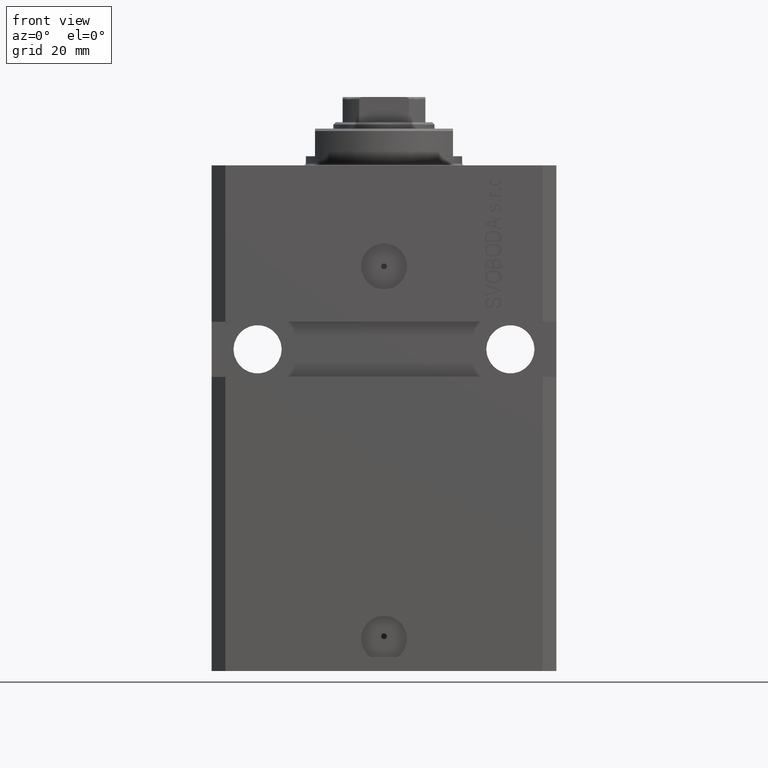
[diagram: clean part render]
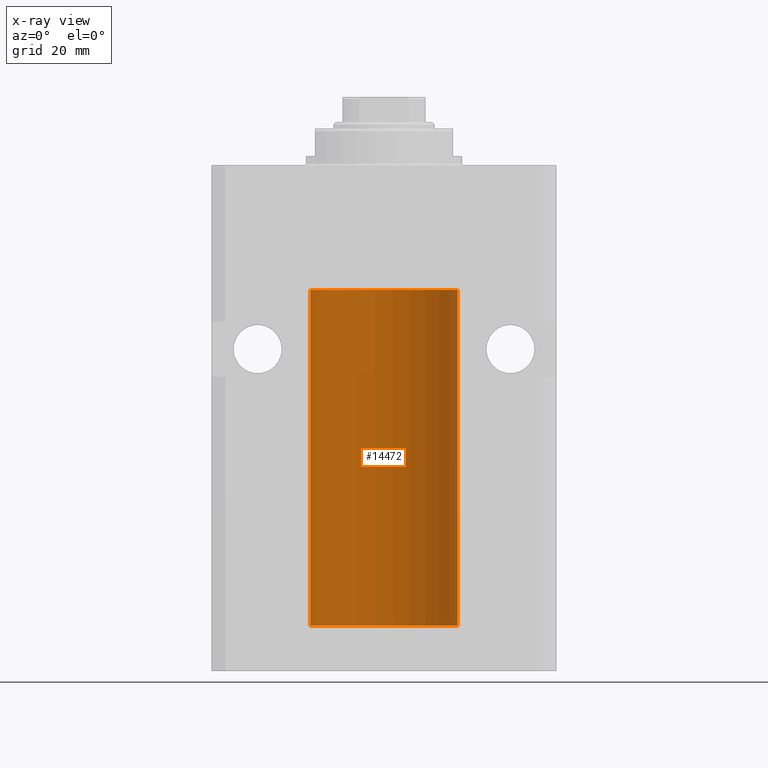
[diagram: x-ray — body ghosted, one internal face saturated and labeled with its STEP entity id]
A machine part, front view, then the same camera in x-ray: the body is ghosted and one INTERNAL B-rep face — a face not visible from any outside direction — is saturated and labeled: STEP entity #14472.
In plain terms, the highlighted cylindrical surface (partial cylindrical patch) has radius 16 mm, axis along (0, 0, 1).
Its self-contained STEP definition (entity closure, byte-faithful):
#53 = VERTEX_POINT ( 'NONE', #13199 ) ;
#1108 = CARTESIAN_POINT ( 'NONE',  ( 16.00000000000001066, 0.08261762387943044628, -98.62500000000001421 ) ) ;
#1813 = CARTESIAN_POINT ( 'NONE',  ( 15.99070366873610283, 0.5574063959867601170, -98.32639436837558833 ) ) ;
#2148 = CARTESIAN_POINT ( 'NONE',  ( 15.99228275317786441, 0.5002975944204781644, -97.61642014570176684 ) ) ;
#2607 = ORIENTED_EDGE ( 'NONE', *, *, #33273, .F. ) ;
#3440 = LINE ( 'NONE', #35883, #5178 ) ;
#3454 = EDGE_CURVE ( 'NONE', #17054, #24180, #14897, .T. ) ;
#4381 = CARTESIAN_POINT ( 'NONE',  ( 16.00000000000013145, 3.665532692826917502E-13, -97.37499999999657518 ) ) ;
#4788 = DIRECTION ( 'NONE',  ( 1.000000000000000000, 0.000000000000000000, 0.000000000000000000 ) ) ;
#5178 = VECTOR ( 'NONE', #14346, 1000.000000000000000 ) ;
#7589 = DIRECTION ( 'NONE',  ( 1.000000000000000000, 0.000000000000000000, 0.000000000000000000 ) ) ;
#7779 = EDGE_CURVE ( 'NONE', #8938, #38949, #7825, .T. ) ;
#7825 = LINE ( 'NONE', #18970, #40512 ) ;
#8264 = DIRECTION ( 'NONE',  ( -0.000000000000000000, -0.000000000000000000, 1.000000000000000000 ) ) ;
#8604 = DIRECTION ( 'NONE',  ( -0.000000000000000000, -0.000000000000000000, 1.000000000000000000 ) ) ;
#8938 = VERTEX_POINT ( 'NONE', #21885 ) ;
#9079 = CARTESIAN_POINT ( 'NONE',  ( 0.000000000000000000, 0.000000000000000000, -100.0999999999999943 ) ) ;
#10337 = EDGE_CURVE ( 'NONE', #11917, #11344, #15267, .T. ) ;
#10676 = CARTESIAN_POINT ( 'NONE',  ( 0.000000000000000000, 0.000000000000000000, -100.0999999999999943 ) ) ;
#11344 = VERTEX_POINT ( 'NONE', #4381 ) ;
#11917 = VERTEX_POINT ( 'NONE', #26469 ) ;
#12579 = CARTESIAN_POINT ( 'NONE',  ( 16.00000000000013145, 3.665532692826917502E-13, -97.37499999999657518 ) ) ;
#12720 = CARTESIAN_POINT ( 'NONE',  ( 15.98778830858070954, 0.6250000000080517815, -97.99999999999916156 ) ) ;
#13199 = CARTESIAN_POINT ( 'NONE',  ( 16.00000000000000000, 0.000000000000000000, -27.10000000000000142 ) ) ;
#14220 = EDGE_CURVE ( 'NONE', #11344, #53, #3440, .T. ) ;
#14346 = DIRECTION ( 'NONE',  ( -0.000000000000000000, -0.000000000000000000, 1.000000000000000000 ) ) ;
#14472 = ADVANCED_FACE ( 'NONE', ( #19970 ), #41526, .F. ) ;
#14897 = LINE ( 'NONE', #18695, #30538 ) ;
#15267 = B_SPLINE_CURVE_WITH_KNOTS ( 'NONE', 3,
 ( #33883, #23935, #34338, #23243, #2148, #45277, #31041, #12579 ),
 .UNSPECIFIED., .F., .F.,
 ( 4, 2, 2, 4 ),
 ( 0.0009773326288700682433, 0.001221554802188685399, 0.001465776975507302772, 0.001954221322144537518 ),
 .UNSPECIFIED. ) ;
#15510 = CIRCLE ( 'NONE', #41203, 16.00000000000000000 ) ;
#16036 = CARTESIAN_POINT ( 'NONE',  ( 15.99707608081895138, 0.3151028052310259620, -98.54594170697734512 ) ) ;
#17054 = VERTEX_POINT ( 'NONE', #23378 ) ;
#17055 = EDGE_CURVE ( 'NONE', #24180, #11917, #37534, .T. ) ;
#18695 = CARTESIAN_POINT ( 'NONE',  ( 16.00000000000000000, 0.000000000000000000, -100.0999999999999943 ) ) ;
#18970 = CARTESIAN_POINT ( 'NONE',  ( -16.00000000000000000, 1.959434878635765131E-15, -100.0999999999999943 ) ) ;
#19356 = CARTESIAN_POINT ( 'NONE',  ( 16.00000000000000000, -1.835653844722709729E-15, -98.62500000000000000 ) ) ;
#19970 = FACE_OUTER_BOUND ( 'NONE', #40529, .T. ) ;
#21885 = CARTESIAN_POINT ( 'NONE',  ( -16.00000000000000000, 1.959434878635765131E-15, -100.0999999999999943 ) ) ;
#22737 = ORIENTED_EDGE ( 'NONE', *, *, #17055, .T. ) ;
#23243 = CARTESIAN_POINT ( 'NONE',  ( 15.99070695999103542, 0.5461439696927204990, -97.68526802364048933 ) ) ;
#23378 = CARTESIAN_POINT ( 'NONE',  ( 16.00000000000000000, 0.000000000000000000, -100.0999999999999943 ) ) ;
#23527 = ORIENTED_EDGE ( 'NONE', *, *, #14220, .T. ) ;
#23536 = DIRECTION ( 'NONE',  ( 1.000000000000000000, 0.000000000000000000, 0.000000000000000000 ) ) ;
#23935 = CARTESIAN_POINT ( 'NONE',  ( 15.98778830858103817, 0.6249999999997223332, -97.91847885046210820 ) ) ;
#24180 = VERTEX_POINT ( 'NONE', #39726 ) ;
#24897 = EDGE_CURVE ( 'NONE', #53, #38949, #15510, .T. ) ;
#26469 = CARTESIAN_POINT ( 'NONE',  ( 15.98778830858070954, 0.6250000000080517815, -97.99999999999916156 ) ) ;
#27374 = ORIENTED_EDGE ( 'NONE', *, *, #24897, .T. ) ;
#29842 = DIRECTION ( 'NONE',  ( -0.000000000000000000, -0.000000000000000000, 1.000000000000000000 ) ) ;
#30241 = CARTESIAN_POINT ( 'NONE',  ( 15.99934183755190986, 0.1636877470527013101, -98.60872690654072414 ) ) ;
#30342 = ORIENTED_EDGE ( 'NONE', *, *, #10337, .T. ) ;
#30538 = VECTOR ( 'NONE', #8264, 1000.000000000000000 ) ;
#31041 = CARTESIAN_POINT ( 'NONE',  ( 15.99999999999999645, 0.1631343969470158417, -97.37500000000021316 ) ) ;
#33098 = AXIS2_PLACEMENT_3D ( 'NONE', #10676, #36001, #7589 ) ;
#33273 = EDGE_CURVE ( 'NONE', #17054, #8938, #34620, .T. ) ;
#33883 = CARTESIAN_POINT ( 'NONE',  ( 15.98778830858070954, 0.6250000000080517815, -97.99999999999916156 ) ) ;
#34338 = CARTESIAN_POINT ( 'NONE',  ( 15.98844460043491367, 0.6087869699337551399, -97.83657454967556077 ) ) ;
#34620 = CIRCLE ( 'NONE', #33098, 16.00000000000000000 ) ;
#34652 = AXIS2_PLACEMENT_3D ( 'NONE', #9079, #8604, #23536 ) ;
#35883 = CARTESIAN_POINT ( 'NONE',  ( 16.00000000000000000, 0.000000000000000000, -100.0999999999999943 ) ) ;
#36001 = DIRECTION ( 'NONE',  ( 0.000000000000000000, 0.000000000000000000, 1.000000000000000000 ) ) ;
#36290 = CARTESIAN_POINT ( 'NONE',  ( 0.000000000000000000, 0.000000000000000000, -27.10000000000000142 ) ) ;
#37534 = B_SPLINE_CURVE_WITH_KNOTS ( 'NONE', 3,
 ( #19356, #1108, #30241, #16036, #37817, #1813, #38047, #12720 ),
 .UNSPECIFIED., .F., .F.,
 ( 4, 2, 2, 4 ),
 ( 1.783888443149829469E-18, 0.0002443331572175257886, 0.0004886663144350497342, 0.0009773326288700682433 ),
 .UNSPECIFIED. ) ;
#37817 = CARTESIAN_POINT ( 'NONE',  ( 15.99548458234361448, 0.3844468804816183471, -98.49947786696355934 ) ) ;
#38047 = CARTESIAN_POINT ( 'NONE',  ( 15.98778830858101685, 0.6250000000002223777, -98.16311639173024162 ) ) ;
#38308 = CARTESIAN_POINT ( 'NONE',  ( -16.00000000000000000, 1.959434878635765131E-15, -27.10000000000000142 ) ) ;
#38949 = VERTEX_POINT ( 'NONE', #38308 ) ;
#39587 = ORIENTED_EDGE ( 'NONE', *, *, #3454, .T. ) ;
#39726 = CARTESIAN_POINT ( 'NONE',  ( 16.00000000000000000, -1.835653844722709729E-15, -98.62500000000000000 ) ) ;
#40512 = VECTOR ( 'NONE', #29842, 1000.000000000000000 ) ;
#40529 = EDGE_LOOP ( 'NONE', ( #40888, #2607, #39587, #22737, #30342, #23527, #27374 ) ) ;
#40888 = ORIENTED_EDGE ( 'NONE', *, *, #7779, .F. ) ;
#41019 = DIRECTION ( 'NONE',  ( 0.000000000000000000, 0.000000000000000000, 1.000000000000000000 ) ) ;
#41203 = AXIS2_PLACEMENT_3D ( 'NONE', #36290, #41019, #4788 ) ;
#41526 = CYLINDRICAL_SURFACE ( 'NONE', #34652, 16.00000000000000000 ) ;
#45277 = CARTESIAN_POINT ( 'NONE',  ( 15.99711856062700477, 0.3252985083514284281, -97.44140297987712529 ) ) ;